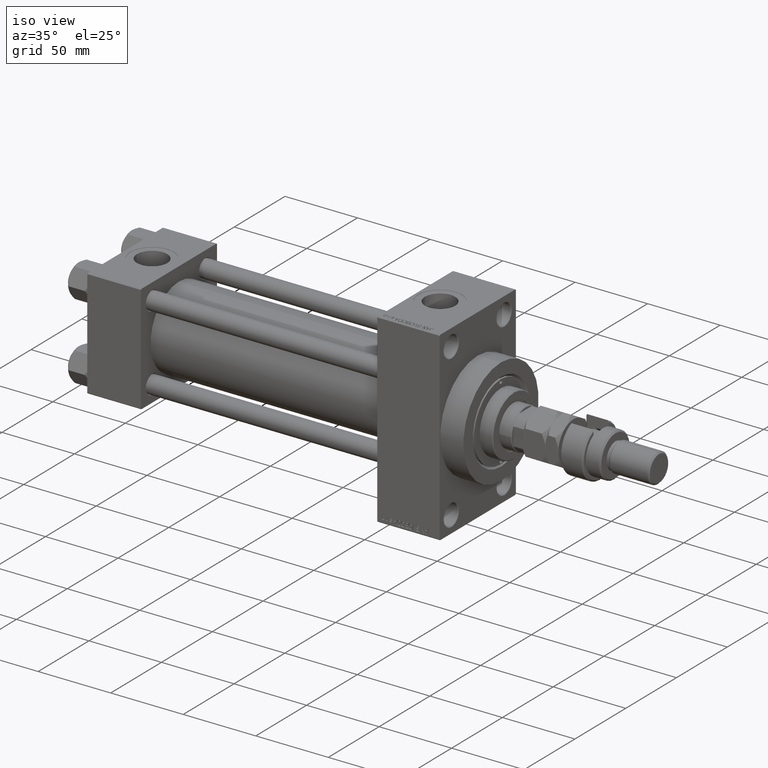
[diagram: clean part render]
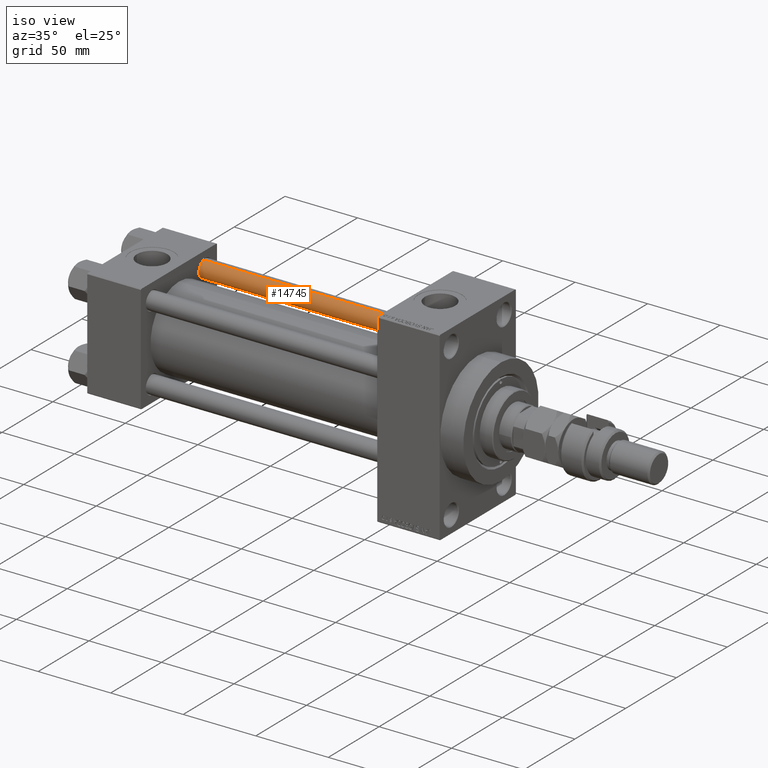
[diagram: same view with one face highlighted and labeled with its STEP entity id]
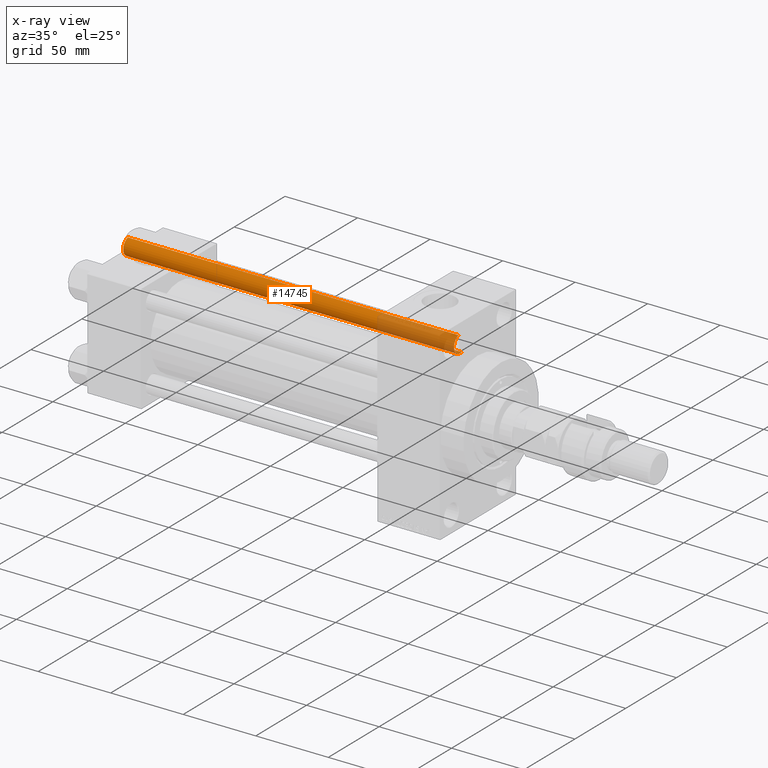
[diagram: x-ray of the same camera — body ghosted, the highlighted face saturated]
A machine part, iso view. The second image highlights one B-rep face of the part: STEP entity #14745.
The next image is the same camera in x-ray: the body ghosted, the highlighted face saturated — about 23% of this face is hidden behind the body in this view.
In plain terms, the highlighted cylindrical surface (edge-blend (fillet) strip) has radius 6 mm, axis along (-1, -0, 0).
Its self-contained STEP definition (entity closure, byte-faithful):
#1080 = ORIENTED_EDGE ( 'NONE', *, *, #37851, .F. ) ;
#1722 = CARTESIAN_POINT ( 'NONE',  ( 0.000000000000000000, 0.000000000000000000, 229.0000000000000000 ) ) ;
#2310 = CARTESIAN_POINT ( 'NONE',  ( 6.000000000000000888, 7.347880794884119736E-16, 229.0000000000000000 ) ) ;
#2783 = CYLINDRICAL_SURFACE ( 'NONE', #43420, 6.000000000000000888 ) ;
#3933 = DIRECTION ( 'NONE',  ( -0.000000000000000000, -0.000000000000000000, -1.000000000000000000 ) ) ;
#4167 = VERTEX_POINT ( 'NONE', #36361 ) ;
#9219 = CARTESIAN_POINT ( 'NONE',  ( 6.000000000000000888, 7.347880794884119736E-16, 228.5000000000001137 ) ) ;
#12445 = DIRECTION ( 'NONE',  ( 1.000000000000000000, 0.000000000000000000, 0.000000000000000000 ) ) ;
#13745 = CIRCLE ( 'NONE', #49227, 6.000000000000000888 ) ;
#14745 = ADVANCED_FACE ( 'NONE', ( #38272 ), #2783, .T. ) ;
#15303 = ORIENTED_EDGE ( 'NONE', *, *, #37691, .T. ) ;
#15340 = CARTESIAN_POINT ( 'NONE',  ( -6.000000000000000888, 0.000000000000000000, 229.0000000000000000 ) ) ;
#15945 = CIRCLE ( 'NONE', #20182, 6.000000000000000888 ) ;
#16676 = CARTESIAN_POINT ( 'NONE',  ( 0.000000000000000000, 0.000000000000000000, 0.5000000000001392220 ) ) ;
#18429 = DIRECTION ( 'NONE',  ( -0.000000000000000000, -0.000000000000000000, -1.000000000000000000 ) ) ;
#19329 = LINE ( 'NONE', #15340, #37786 ) ;
#20182 = AXIS2_PLACEMENT_3D ( 'NONE', #51646, #36041, #43208 ) ;
#21919 = CARTESIAN_POINT ( 'NONE',  ( 6.000000000000000888, 7.347880794884119736E-16, 0.5000000000001392220 ) ) ;
#23502 = EDGE_LOOP ( 'NONE', ( #1080, #36388, #15303, #42618 ) ) ;
#24831 = EDGE_CURVE ( 'NONE', #31491, #29780, #13745, .T. ) ;
#26168 = LINE ( 'NONE', #2310, #51351 ) ;
#29780 = VERTEX_POINT ( 'NONE', #21919 ) ;
#31491 = VERTEX_POINT ( 'NONE', #33692 ) ;
#33692 = CARTESIAN_POINT ( 'NONE',  ( -6.000000000000000888, 0.000000000000000000, 0.5000000000001392220 ) ) ;
#36041 = DIRECTION ( 'NONE',  ( 0.000000000000000000, 0.000000000000000000, -1.000000000000000000 ) ) ;
#36361 = CARTESIAN_POINT ( 'NONE',  ( -6.000000000000000888, 0.000000000000000000, 228.5000000000001137 ) ) ;
#36388 = ORIENTED_EDGE ( 'NONE', *, *, #40424, .T. ) ;
#37691 = EDGE_CURVE ( 'NONE', #4167, #31491, #19329, .T. ) ;
#37786 = VECTOR ( 'NONE', #3933, 1000.000000000000000 ) ;
#37851 = EDGE_CURVE ( 'NONE', #50218, #29780, #26168, .T. ) ;
#38272 = FACE_OUTER_BOUND ( 'NONE', #23502, .T. ) ;
#40424 = EDGE_CURVE ( 'NONE', #50218, #4167, #15945, .T. ) ;
#42040 = DIRECTION ( 'NONE',  ( -0.000000000000000000, -0.000000000000000000, -1.000000000000000000 ) ) ;
#42618 = ORIENTED_EDGE ( 'NONE', *, *, #24831, .T. ) ;
#43208 = DIRECTION ( 'NONE',  ( 1.000000000000000000, 0.000000000000000000, 0.000000000000000000 ) ) ;
#43420 = AXIS2_PLACEMENT_3D ( 'NONE', #1722, #18429, #50698 ) ;
#45510 = DIRECTION ( 'NONE',  ( -0.000000000000000000, -0.000000000000000000, 1.000000000000000000 ) ) ;
#49227 = AXIS2_PLACEMENT_3D ( 'NONE', #16676, #45510, #12445 ) ;
#50218 = VERTEX_POINT ( 'NONE', #9219 ) ;
#50698 = DIRECTION ( 'NONE',  ( -1.000000000000000000, 0.000000000000000000, 0.000000000000000000 ) ) ;
#51351 = VECTOR ( 'NONE', #42040, 1000.000000000000000 ) ;
#51646 = CARTESIAN_POINT ( 'NONE',  ( 0.000000000000000000, 0.000000000000000000, 228.5000000000001137 ) ) ;